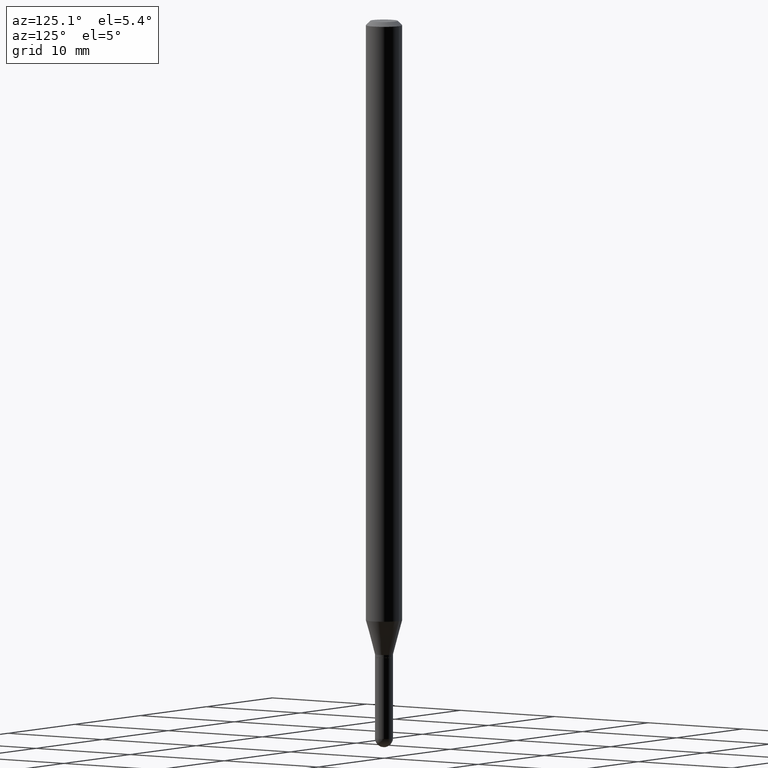
[diagram: clean part render]
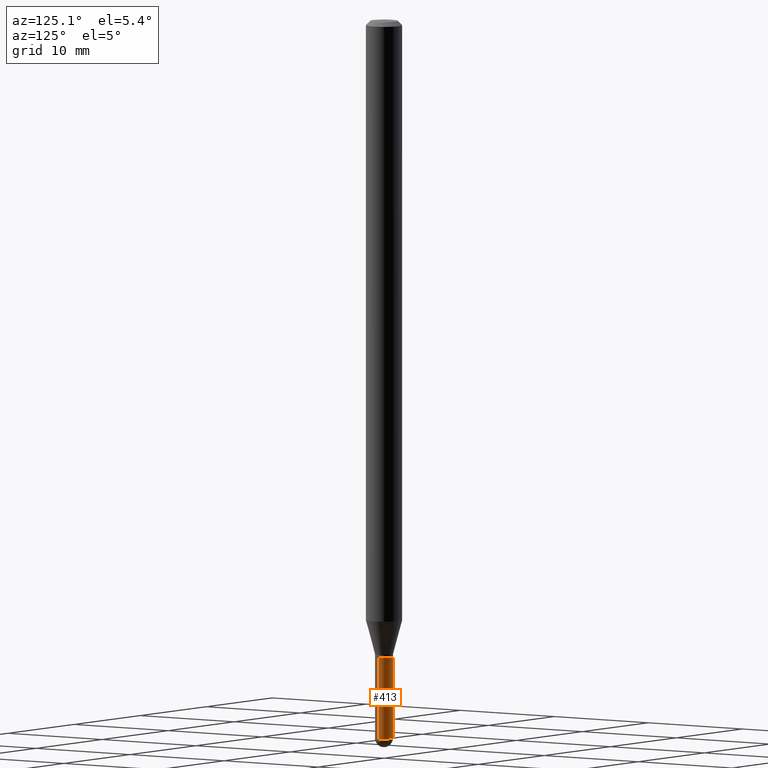
[diagram: same view with one face highlighted and labeled with its STEP entity id]
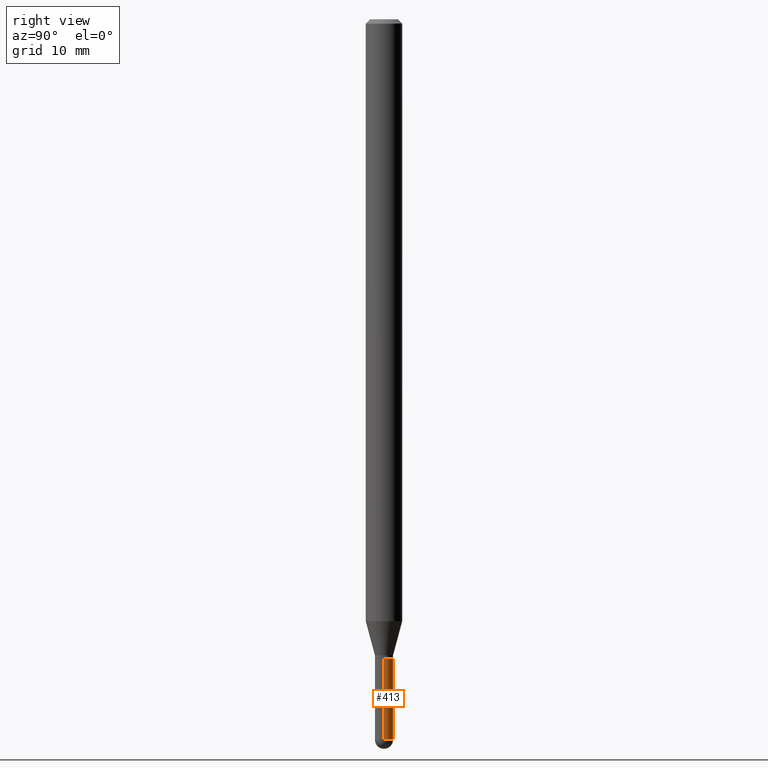
[diagram: same view with one face highlighted and labeled with its STEP entity id]
A machine part, auxiliary view. The second image highlights one B-rep face of the part: STEP entity #413.
A second angle (right view) of the same face is appended — the face is thin or edge-on in the first view.
In plain terms, the highlighted cylindrical surface (edge-blend (fillet) strip) has radius 0.7874 mm, axis along (-0, 0, 1).
Its self-contained STEP definition (entity closure, byte-faithful):
#5 = AXIS2_PLACEMENT_3D ( 'NONE', #188, #359, #45 ) ;
#35 = VERTEX_POINT ( 'NONE', #285 ) ;
#40 = DIRECTION ( 'NONE',  ( 1.000000000000000000, -6.982962677686270655E-15, 0.000000000000000000 ) ) ;
#45 = DIRECTION ( 'NONE',  ( 1.000000000000000000, -6.982962677686270655E-15, 0.000000000000000000 ) ) ;
#76 = CIRCLE ( 'NONE', #5, 0.03099999999999999978 ) ;
#92 = CARTESIAN_POINT ( 'NONE',  ( 2.164718430083332245E-16, 0.03099999999999118044, -2.469000000000000306 ) ) ;
#95 = DIRECTION ( 'NONE',  ( 1.000000000000000000, -6.982962677686266711E-15, 4.876176775795935232E-29 ) ) ;
#97 = ORIENTED_EDGE ( 'NONE', *, *, #235, .F. ) ;
#101 = AXIS2_PLACEMENT_3D ( 'NONE', #170, #206, #95 ) ;
#125 = EDGE_CURVE ( 'NONE', #35, #150, #281, .T. ) ;
#132 = ORIENTED_EDGE ( 'NONE', *, *, #264, .T. ) ;
#148 = DIRECTION ( 'NONE',  ( -2.445468806185136877E-29, 3.491481338843145188E-15, 1.000000000000000000 ) ) ;
#150 = VERTEX_POINT ( 'NONE', #509 ) ;
#155 = AXIS2_PLACEMENT_3D ( 'NONE', #397, #274, #432 ) ;
#161 = EDGE_CURVE ( 'NONE', #231, #447, #228, .T. ) ;
#163 = VECTOR ( 'NONE', #307, 39.37007874015748143 ) ;
#170 = CARTESIAN_POINT ( 'NONE',  ( 0.000000000000000000, 0.000000000000000000, 0.000000000000000000 ) ) ;
#188 = CARTESIAN_POINT ( 'NONE',  ( 6.037862482471103495E-29, -8.620467425603728566E-15, -2.469000000000000306 ) ) ;
#189 = CARTESIAN_POINT ( 'NONE',  ( -0.03099999999999999978, -7.913137530749477307E-15, -2.469000000000000306 ) ) ;
#206 = DIRECTION ( 'NONE',  ( -2.445468806185136597E-29, 3.491481338843145583E-15, 1.000000000000000000 ) ) ;
#223 = CIRCLE ( 'NONE', #271, 0.03099999999999999978 ) ;
#224 = CARTESIAN_POINT ( 'NONE',  ( 6.037862482471103495E-29, -8.620467425603728566E-15, -2.469000000000000306 ) ) ;
#227 = ORIENTED_EDGE ( 'NONE', *, *, #252, .T. ) ;
#228 = LINE ( 'NONE', #279, #163 ) ;
#231 = VERTEX_POINT ( 'NONE', #189 ) ;
#235 = EDGE_CURVE ( 'NONE', #150, #447, #468, .T. ) ;
#247 = CYLINDRICAL_SURFACE ( 'NONE', #101, 0.03099999999999999978 ) ;
#252 = EDGE_CURVE ( 'NONE', #326, #231, #223, .T. ) ;
#262 = ORIENTED_EDGE ( 'NONE', *, *, #125, .F. ) ;
#264 = EDGE_CURVE ( 'NONE', #35, #326, #76, .T. ) ;
#271 = AXIS2_PLACEMENT_3D ( 'NONE', #224, #391, #40 ) ;
#274 = DIRECTION ( 'NONE',  ( -2.445468806185136597E-29, 3.491481338843145583E-15, 1.000000000000000000 ) ) ;
#279 = CARTESIAN_POINT ( 'NONE',  ( -0.03099999999999999978, 2.202682480856310560E-16, -1.524869877979020612E-30 ) ) ;
#280 = EDGE_LOOP ( 'NONE', ( #227, #393, #97, #262, #132 ) ) ;
#281 = LINE ( 'NONE', #444, #494 ) ;
#285 = CARTESIAN_POINT ( 'NONE',  ( 0.03099999999999999978, -8.349877621843383680E-15, -2.469000000000000306 ) ) ;
#287 = FACE_OUTER_BOUND ( 'NONE', #280, .T. ) ;
#307 = DIRECTION ( 'NONE',  ( -2.445468806185136877E-29, 3.491481338843145188E-15, 1.000000000000000000 ) ) ;
#326 = VERTEX_POINT ( 'NONE', #92 ) ;
#341 = CARTESIAN_POINT ( 'NONE',  ( -0.03099999999999999978, -7.913137530749477307E-15, -2.189999999999999947 ) ) ;
#359 = DIRECTION ( 'NONE',  ( -2.445468806185136597E-29, 3.491481338843145583E-15, 1.000000000000000000 ) ) ;
#391 = DIRECTION ( 'NONE',  ( -2.445468806185136597E-29, 3.491481338843145583E-15, 1.000000000000000000 ) ) ;
#393 = ORIENTED_EDGE ( 'NONE', *, *, #161, .T. ) ;
#397 = CARTESIAN_POINT ( 'NONE',  ( 5.355576685545449192E-29, -7.646344132066488554E-15, -2.189999999999999947 ) ) ;
#413 = ADVANCED_FACE ( 'NONE', ( #287 ), #247, .T. ) ;
#432 = DIRECTION ( 'NONE',  ( 1.000000000000000000, -6.982962677686270655E-15, 0.000000000000000000 ) ) ;
#444 = CARTESIAN_POINT ( 'NONE',  ( 0.03099999999999999978, -2.164718430082742572E-16, 1.511614800496739984E-30 ) ) ;
#447 = VERTEX_POINT ( 'NONE', #341 ) ;
#468 = CIRCLE ( 'NONE', #155, 0.03099999999999999978 ) ;
#494 = VECTOR ( 'NONE', #148, 39.37007874015748143 ) ;
#509 = CARTESIAN_POINT ( 'NONE',  ( 0.03099999999999999978, -7.862815975074762885E-15, -2.189999999999999947 ) ) ;